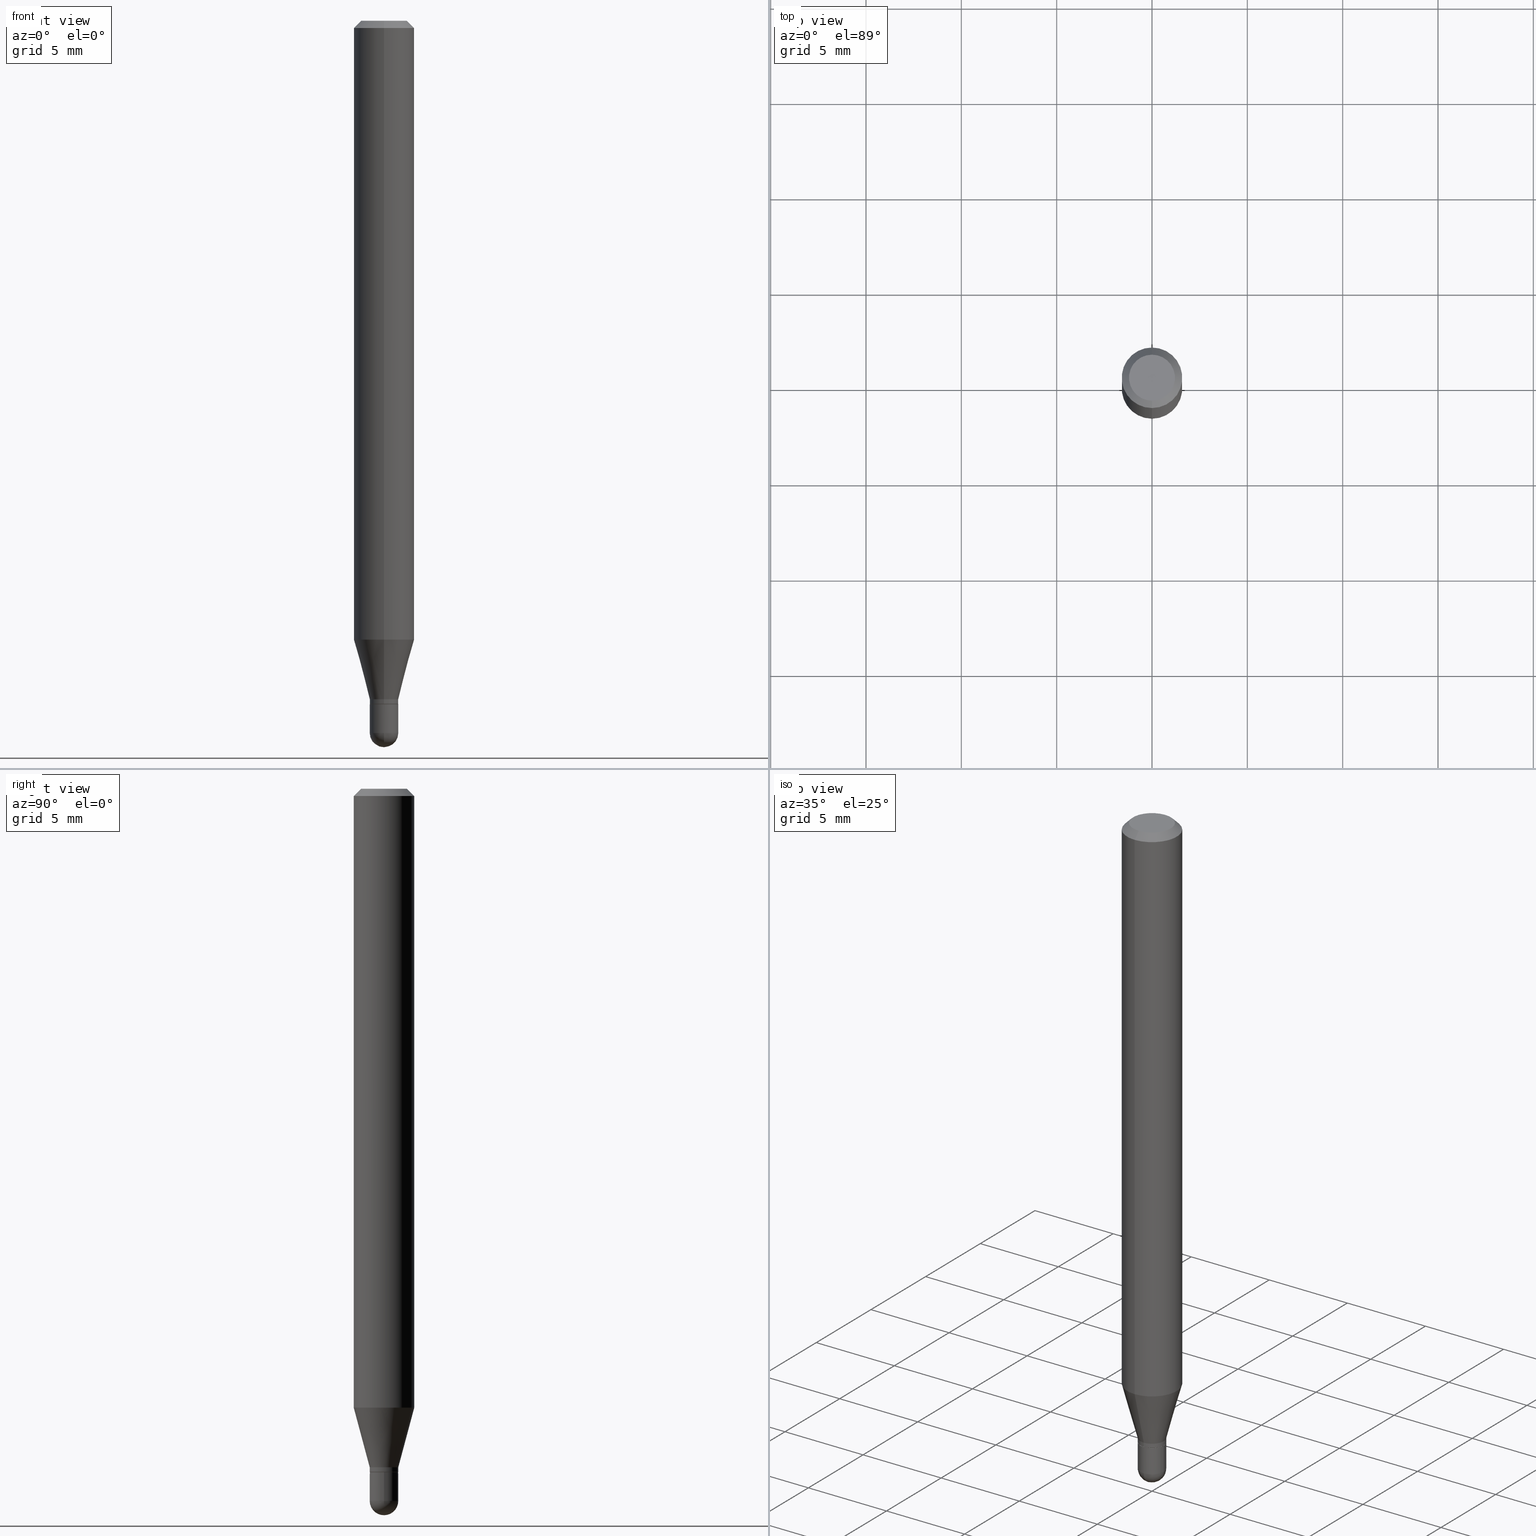
[diagram: canonical four-view strip — front | top / right | iso, engineering-drawing reading convention]
A machine part, canonical four-view strip (front | top / right | iso — engineering-drawing reading convention). The complete STEP part file that produces these views, byte-faithful:
ISO-10303-21;
HEADER;
FILE_DESCRIPTION (( 'STEP AP203' ),
    '1' );
FILE_NAME ('00794.STEP',
    '2024-03-07T18:23:36',
    ( '' ),
    ( '' ),
    'SwSTEP 2.0',
    'SolidWorks 2023',
    '' );
FILE_SCHEMA (( 'CONFIG_CONTROL_DESIGN' ));
ENDSEC;

DATA;
#1 = DIRECTION ( 'NONE',  ( -6.982962677686265133E-15, -1.000000000000000000, 0.000000000000000000 ) ) ;
#2 = DIRECTION ( 'NONE',  ( 2.445467841293650250E-29, -3.491482720622672358E-15, -1.000000000000000000 ) ) ;
#3 = APPROVAL_ROLE ( '' ) ;
#4 = EDGE_CURVE ( 'NONE', #334, #300, #247, .T. ) ;
#5 = VERTEX_POINT ( 'NONE', #364 ) ;
#6 = DATE_AND_TIME ( #328, #376 ) ;
#7 = CARTESIAN_POINT ( 'NONE',  ( 0.02949999999999999845, -5.132477568099422441E-15, -1.411000000000000032 ) ) ;
#8 = AXIS2_PLACEMENT_3D ( 'NONE', #56, #200, #409 ) ;
#9 = CONICAL_SURFACE ( 'NONE', #88, 0.06250000000000000000, 0.7853981633974483900 ) ;
#10 =( NAMED_UNIT ( * ) SI_UNIT ( $, .STERADIAN. ) SOLID_ANGLE_UNIT ( ) );
#11 = CC_DESIGN_PERSON_AND_ORGANIZATION_ASSIGNMENT ( #408, #401, ( #318 ) ) ;
#12 = DIRECTION ( 'NONE',  ( 0.000000000000000000, 0.000000000000000000, 1.000000000000000000 ) ) ;
#13 = CARTESIAN_POINT ( 'NONE',  ( -4.364351673553605587E-16, -0.06250000000000449640, -1.277842323350228515 ) ) ;
#14 = DIRECTION ( 'NONE',  ( -2.445468806185136597E-29, 3.491481338843145583E-15, 1.000000000000000000 ) ) ;
#15 = PERSON_AND_ORGANIZATION ( #178, #359 ) ;
#16 = CARTESIAN_POINT ( 'NONE',  ( -3.773273898774340269E-16, -0.04749999999999999362, 1.569851752722733387E-16 ) ) ;
#17 = ORIENTED_EDGE ( 'NONE', *, *, #93, .F. ) ;
#18 =( LENGTH_UNIT ( ) NAMED_UNIT ( * ) SI_UNIT ( $, .METRE. ) );
#19 = CARTESIAN_POINT ( 'NONE',  ( 4.440892098500935790E-16, 0.06249999999999551054, -1.277842323350228959 ) ) ;
#20 = AXIS2_PLACEMENT_3D ( 'NONE', #483, #127, #210 ) ;
#21 = CIRCLE ( 'NONE', #196, 0.04749999999999999362 ) ;
#22 = EDGE_LOOP ( 'NONE', ( #69, #310, #87, #156 ) ) ;
#23 = CARTESIAN_POINT ( 'NONE',  ( 3.426100445652404486E-29, -4.891567291592364272E-15, -1.401000000000000245 ) ) ;
#24 = EDGE_CURVE ( 'NONE', #342, #133, #290, .T. ) ;
#25 = VERTEX_POINT ( 'NONE', #7 ) ;
#26 = FACE_OUTER_BOUND ( 'NONE', #450, .T. ) ;
#27 = EDGE_LOOP ( 'NONE', ( #17, #270, #132, #456 ) ) ;
#28 = DIRECTION ( 'NONE',  ( -2.445468806185136597E-29, 3.491481338843145583E-15, 1.000000000000000000 ) ) ;
#29 = CIRCLE ( 'NONE', #393, 0.02950000000000000192 ) ;
#30 =( GEOMETRIC_REPRESENTATION_CONTEXT ( 3 ) GLOBAL_UNCERTAINTY_ASSIGNED_CONTEXT ( ( #262 ) ) GLOBAL_UNIT_ASSIGNED_CONTEXT ( ( #404, #212, #10 ) ) REPRESENTATION_CONTEXT ( 'NONE', 'WORKASPACE' ) );
#31 = DIRECTION ( 'NONE',  ( 2.445467841293650250E-29, -3.491482720622672358E-15, -1.000000000000000000 ) ) ;
#32 = EDGE_CURVE ( 'NONE', #361, #255, #283, .T. ) ;
#33 = CARTESIAN_POINT ( 'NONE',  ( 3.668201761940477862E-31, -5.237224080934011471E-17, -0.01500000000000000812 ) ) ;
#34 = ORIENTED_EDGE ( 'NONE', *, *, #24, .F. ) ;
#35 = LINE ( 'NONE', #234, #374 ) ;
#36 = ORIENTED_EDGE ( 'NONE', *, *, #73, .F. ) ;
#37 = CIRCLE ( 'NONE', #248, 0.02949999999999999845 ) ;
#38 = DIRECTION ( 'NONE',  ( 4.937700262164548042E-15, 0.7071067811865451302, -0.7071067811865499042 ) ) ;
#39 = EDGE_CURVE ( 'NONE', #255, #135, #29, .T. ) ;
#40 = CARTESIAN_POINT ( 'NONE',  ( -4.287811248607203282E-16, -0.06250000000000005551, -0.01499999999999979128 ) ) ;
#41 = DIRECTION ( 'NONE',  ( -6.982962677686265922E-15, -1.000000000000000000, 3.491482720622672358E-15 ) ) ;
#42 = LINE ( 'NONE', #40, #432 ) ;
#43 = PRODUCT_RELATED_PRODUCT_CATEGORY ( 'detail', '', ( #182 ) ) ;
#44 = DATE_AND_TIME ( #445, #490 ) ;
#45 = DIRECTION ( 'NONE',  ( -4.937700262164674260E-15, -0.7071067811865632269, 0.7071067811865319186 ) ) ;
#46 = DATE_AND_TIME ( #412, #302 ) ;
#47 = CARTESIAN_POINT ( 'NONE',  ( -2.059973989917119804E-16, -0.02950000000000509159, -1.401000000000000245 ) ) ;
#48 = ORIENTED_EDGE ( 'NONE', *, *, #32, .F. ) ;
#49 = EDGE_CURVE ( 'NONE', #5, #454, #121, .T. ) ;
#50 = APPROVAL_DATE_TIME ( #116, #151 ) ;
#51 = DIRECTION ( 'NONE',  ( 2.445467841293649970E-29, -3.491482720622672358E-15, -1.000000000000000000 ) ) ;
#52 = APPROVAL_STATUS ( 'not_yet_approved' ) ;
#53 = CARTESIAN_POINT ( 'NONE',  ( 3.450555124065340240E-29, -4.926482118798590822E-15, -1.411000000000000032 ) ) ;
#54 = ORIENTED_EDGE ( 'NONE', *, *, #460, .T. ) ;
#55 = CARTESIAN_POINT ( 'NONE',  ( 0.000000000000000000, 0.000000000000000000, 0.000000000000000000 ) ) ;
#56 = CARTESIAN_POINT ( 'NONE',  ( 3.593539138942164173E-29, -5.137836016826330348E-15, -1.470500000000000140 ) ) ;
#57 = ORIENTED_EDGE ( 'NONE', *, *, #73, .T. ) ;
#58 = DIRECTION ( 'NONE',  ( -6.982962677686265922E-15, -1.000000000000000000, 3.483106191921935554E-15 ) ) ;
#59 = CIRCLE ( 'NONE', #384, 0.06250000000000000000 ) ;
#60 = AXIS2_PLACEMENT_3D ( 'NONE', #197, #192, #360 ) ;
#61 = EDGE_LOOP ( 'NONE', ( #48, #257, #308, #469 ) ) ;
#62 = FACE_OUTER_BOUND ( 'NONE', #90, .T. ) ;
#63 = LINE ( 'NONE', #303, #386 ) ;
#64 = ORIENTED_EDGE ( 'NONE', *, *, #167, .T. ) ;
#65 = CC_DESIGN_PERSON_AND_ORGANIZATION_ASSIGNMENT ( #368, #162, ( #285 ) ) ;
#66 = SPHERICAL_SURFACE ( 'NONE', #140, 0.02950000000000002967 ) ;
#67 = AXIS2_PLACEMENT_3D ( 'NONE', #174, #339, #307 ) ;
#68 = AXIS2_PLACEMENT_3D ( 'NONE', #227, #76, #271 ) ;
#69 = ORIENTED_EDGE ( 'NONE', *, *, #281, .F. ) ;
#70 = DIRECTION ( 'NONE',  ( -6.982962677686265922E-15, -1.000000000000000000, 0.000000000000000000 ) ) ;
#71 = EDGE_LOOP ( 'NONE', ( #378, #383, #92, #371 ) ) ;
#72 = CARTESIAN_POINT ( 'NONE',  ( 0.000000000000000000, 0.000000000000000000, 0.000000000000000000 ) ) ;
#73 = EDGE_CURVE ( 'NONE', #133, #124, #59, .T. ) ;
#74 = AXIS2_PLACEMENT_3D ( 'NONE', #451, #28, #377 ) ;
#75 = CIRCLE ( 'NONE', #216, 0.02899999999999999800 ) ;
#76 = DIRECTION ( 'NONE',  ( -2.445468806185136597E-29, 3.491481338843145583E-15, 1.000000000000000000 ) ) ;
#77 = CARTESIAN_POINT ( 'NONE',  ( 3.450555124065340240E-29, -4.926482118798590822E-15, -1.411000000000000032 ) ) ;
#78 = CARTESIAN_POINT ( 'NONE',  ( -4.364351673553912750E-16, -0.06250000000000005551, -0.01499999999999979128 ) ) ;
#79 = EDGE_CURVE ( 'NONE', #107, #25, #230, .T. ) ;
#80 = AXIS2_PLACEMENT_3D ( 'NONE', #405, #51, #207 ) ;
#81 = AXIS2_PLACEMENT_3D ( 'NONE', #141, #218, #459 ) ;
#82 = PERSON_AND_ORGANIZATION ( #178, #359 ) ;
#83 = EDGE_LOOP ( 'NONE', ( #487, #426, #295, #294 ) ) ;
#84 = APPROVAL_STATUS ( 'not_yet_approved' ) ;
#85 = DIRECTION ( 'NONE',  ( -2.445467841293650250E-29, 3.491482720622672358E-15, 1.000000000000000000 ) ) ;
#86 = DIRECTION ( 'NONE',  ( 1.000000000000000000, 0.000000000000000000, 0.000000000000000000 ) ) ;
#87 = ORIENTED_EDGE ( 'NONE', *, *, #24, .T. ) ;
#88 = AXIS2_PLACEMENT_3D ( 'NONE', #385, #31, #299 ) ;
#89 = CC_DESIGN_APPROVAL ( #139, ( #318 ) ) ;
#90 = EDGE_LOOP ( 'NONE', ( #171, #306, #410, #419 ) ) ;
#91 = DIRECTION ( 'NONE',  ( -1.807323732225336056E-15, -0.2588190451025190186, 0.9659258262890687563 ) ) ;
#92 = ORIENTED_EDGE ( 'NONE', *, *, #49, .T. ) ;
#93 = EDGE_CURVE ( 'NONE', #361, #334, #188, .T. ) ;
#94 = DIRECTION ( 'NONE',  ( -2.445467841293650250E-29, 3.491482720622672358E-15, 1.000000000000000000 ) ) ;
#95 = ORIENTED_EDGE ( 'NONE', *, *, #261, .T. ) ;
#96 = DIRECTION ( 'NONE',  ( -2.445467841293650250E-29, 3.491482720622672358E-15, 1.000000000000000000 ) ) ;
#97 = ORIENTED_EDGE ( 'NONE', *, *, #281, .T. ) ;
#98 = DIRECTION ( 'NONE',  ( -2.445467841293650250E-29, 3.491482720622672358E-15, 1.000000000000000000 ) ) ;
#99 = VERTEX_POINT ( 'NONE', #362 ) ;
#100 = ADVANCED_FACE ( 'NONE', ( #320 ), #332, .T. ) ;
#101 = CARTESIAN_POINT ( 'NONE',  ( 4.440892098500625669E-16, 0.06250000000000000000, -2.182176700389170224E-16 ) ) ;
#102 = CYLINDRICAL_SURFACE ( 'NONE', #67, 0.02950000000000006437 ) ;
#103 = AXIS2_PLACEMENT_3D ( 'NONE', #479, #119, #286 ) ;
#104 = EDGE_LOOP ( 'NONE', ( #330, #414, #498, #228, #138 ) ) ;
#105 = AXIS2_PLACEMENT_3D ( 'NONE', #431, #106, #154 ) ;
#106 = DIRECTION ( 'NONE',  ( -2.445467841293650250E-29, 3.491482720622672358E-15, 1.000000000000000000 ) ) ;
#107 = VERTEX_POINT ( 'NONE', #372 ) ;
#108 = EDGE_LOOP ( 'NONE', ( #375, #349, #505, #350 ) ) ;
#109 = DIRECTION ( 'NONE',  ( -4.851104656540964275E-15, -0.7071067811865500152, -0.7071067811865450192 ) ) ;
#110 = ADVANCED_FACE ( 'NONE', ( #485 ), #158, .T. ) ;
#111 = DIRECTION ( 'NONE',  ( -2.445467841293650250E-29, 3.491482720622672358E-15, 1.000000000000000000 ) ) ;
#112 = VECTOR ( 'NONE', #420, 39.37007874015748143 ) ;
#113 = CARTESIAN_POINT ( 'NONE',  ( 0.000000000000000000, 0.000000000000000000, 0.000000000000000000 ) ) ;
#114 = ADVANCED_FACE ( 'NONE', ( #165 ), #152, .T. ) ;
#115 = DIRECTION ( 'NONE',  ( -6.982962677686265922E-15, -1.000000000000000000, 3.491482720622672358E-15 ) ) ;
#116 = DATE_AND_TIME ( #478, #237 ) ;
#117 = AXIS2_PLACEMENT_3D ( 'NONE', #72, #274, #398 ) ;
#118 = COORDINATED_UNIVERSAL_TIME_OFFSET ( 5, 0, .BEHIND. ) ;
#119 = DIRECTION ( 'NONE',  ( -1.000000000000000000, 6.982962677686266711E-15, -4.883557194083112340E-29 ) ) ;
#120 = APPLICATION_PROTOCOL_DEFINITION ( 'international standard', 'config_control_design', 1994, #265 ) ;
#121 = LINE ( 'NONE', #446, #195 ) ;
#122 = ADVANCED_FACE ( 'NONE', ( #245 ), #441, .T. ) ;
#123 = PERSON_AND_ORGANIZATION ( #178, #359 ) ;
#124 = VERTEX_POINT ( 'NONE', #19 ) ;
#125 = VERTEX_POINT ( 'NONE', #169 ) ;
#126 = APPROVAL_ROLE ( '' ) ;
#127 = DIRECTION ( 'NONE',  ( -2.445467841293650250E-29, 3.491482720622672358E-15, 1.000000000000000000 ) ) ;
#128 = LOCAL_TIME ( 13, 23, 36.00000000000000000, #242 ) ;
#129 = ADVANCED_FACE ( 'NONE', ( #292 ), #402, .F. ) ;
#130 = EDGE_LOOP ( 'NONE', ( #462, #388, #452, #221 ) ) ;
#131 = DIRECTION ( 'NONE',  ( -2.445467841293650250E-29, 3.491482720622672358E-15, 1.000000000000000000 ) ) ;
#132 = ORIENTED_EDGE ( 'NONE', *, *, #367, .F. ) ;
#133 = VERTEX_POINT ( 'NONE', #13 ) ;
#134 = DIRECTION ( 'NONE',  ( 1.839019923739606232E-15, 0.2588190451025257910, 0.9659258262890669799 ) ) ;
#135 = VERTEX_POINT ( 'NONE', #329 ) ;
#136 = VERTEX_POINT ( 'NONE', #16 ) ;
#137 = DIRECTION ( 'NONE',  ( -2.445467841293650250E-29, 3.491482720622672358E-15, 1.000000000000000000 ) ) ;
#138 = ORIENTED_EDGE ( 'NONE', *, *, #79, .F. ) ;
#139 = APPROVAL ( #363, 'UNSPECIFIED' ) ;
#140 = AXIS2_PLACEMENT_3D ( 'NONE', #415, #387, #418 ) ;
#141 = CARTESIAN_POINT ( 'NONE',  ( 2.166746611828072802E-46, -3.093542359225412079E-32, -8.860253957303587473E-18 ) ) ;
#142 = CARTESIAN_POINT ( 'NONE',  ( 0.000000000000000000, 0.000000000000000000, 0.000000000000000000 ) ) ;
#143 = DIRECTION ( 'NONE',  ( -6.982962677686266711E-15, -1.000000000000000000, 3.491482720622672753E-15 ) ) ;
#144 = EDGE_LOOP ( 'NONE', ( #468, #217 ) ) ;
#145 = ORIENTED_EDGE ( 'NONE', *, *, #428, .T. ) ;
#146 = CONICAL_SURFACE ( 'NONE', #439, 0.06250000000000000000, 0.7853981633974483900 ) ;
#147 = EDGE_CURVE ( 'NONE', #135, #334, #480, .T. ) ;
#148 = DIRECTION ( 'NONE',  ( -2.445467841293650250E-29, 3.491482720622672358E-15, 1.000000000000000000 ) ) ;
#149 = CARTESIAN_POINT ( 'NONE',  ( 3.450555124065340240E-29, -4.926482118798590822E-15, -1.411000000000000032 ) ) ;
#150 = CARTESIAN_POINT ( 'NONE',  ( 3.450555124065340240E-29, -4.926482118798590822E-15, -1.411000000000000032 ) ) ;
#151 = APPROVAL ( #52, 'UNSPECIFIED' ) ;
#152 = CONICAL_SURFACE ( 'NONE', #20, 0.02899999999999999800, 0.7853981633974739252 ) ;
#153 = DIRECTION ( 'NONE',  ( -2.445467841293650250E-29, 3.491482720622672358E-15, 1.000000000000000000 ) ) ;
#154 = DIRECTION ( 'NONE',  ( -6.982962677686265922E-15, -1.000000000000000000, 0.000000000000000000 ) ) ;
#155 = PERSON_AND_ORGANIZATION_ROLE ( 'design_owner' ) ;
#156 = ORIENTED_EDGE ( 'NONE', *, *, #428, .F. ) ;
#157 = CARTESIAN_POINT ( 'NONE',  ( 2.078337502098634593E-16, 0.02899999999999507139, -1.411000000000000032 ) ) ;
#158 = SPHERICAL_SURFACE ( 'NONE', #103, 0.02950000000000002967 ) ;
#159 = DIRECTION ( 'NONE',  ( 5.024295867788190974E-15, 0.7071067811865681119, 0.7071067811865270336 ) ) ;
#160 = EDGE_CURVE ( 'NONE', #346, #214, #365, .T. ) ;
#161 = CIRCLE ( 'NONE', #260, 0.06250000000000000000 ) ;
#162 = PERSON_AND_ORGANIZATION_ROLE ( 'creator' ) ;
#163 = CARTESIAN_POINT ( 'NONE',  ( 3.124922307996946489E-29, -4.461564391657653796E-15, -1.277842323350228737 ) ) ;
#164 = COORDINATED_UNIVERSAL_TIME_OFFSET ( 5, 0, .BEHIND. ) ;
#165 = FACE_OUTER_BOUND ( 'NONE', #108, .T. ) ;
#166 = DIRECTION ( 'NONE',  ( 1.000000000000000000, -6.982962677686250933E-15, 0.000000000000000000 ) ) ;
#167 = EDGE_CURVE ( 'NONE', #125, #136, #21, .T. ) ;
#168 = EDGE_LOOP ( 'NONE', ( #184, #145, #464, #340 ) ) ;
#169 = CARTESIAN_POINT ( 'NONE',  ( 3.840629472727447874E-16, 0.04749999999999999362, -1.747056831868805136E-16 ) ) ;
#170 = VECTOR ( 'NONE', #501, 39.37007874015748143 ) ;
#171 = ORIENTED_EDGE ( 'NONE', *, *, #261, .F. ) ;
#172 = FACE_OUTER_BOUND ( 'NONE', #296, .T. ) ;
#173 = ORIENTED_EDGE ( 'NONE', *, *, #373, .F. ) ;
#174 = CARTESIAN_POINT ( 'NONE',  ( 0.000000000000000000, 0.000000000000000000, 0.000000000000000000 ) ) ;
#175 = ORIENTED_EDGE ( 'NONE', *, *, #357, .T. ) ;
#176 = ADVANCED_FACE ( 'NONE', ( #461 ), #358, .T. ) ;
#177 = DIRECTION ( 'NONE',  ( -2.445467841293650250E-29, 3.491482720622672358E-15, 1.000000000000000000 ) ) ;
#178 = PERSON ( 'UNSPECIFIED', 'UNSPECIFIED', 'UNSPECIFIED', ('UNSPECIFIED'), ('UNSPECIFIED'), ('UNSPECIFIED') ) ;
#179 = VECTOR ( 'NONE', #502, 39.37007874015748143 ) ;
#180 = CARTESIAN_POINT ( 'NONE',  ( -2.059973989917452604E-16, -0.02950000000000006437, 1.029987402583690572E-16 ) ) ;
#181 = DESIGN_CONTEXT ( 'detailed design', #265, 'design' ) ;
#182 = PRODUCT ( '00794', '00794', '', ( #282 ) ) ;
#183 = CARTESIAN_POINT ( 'NONE',  ( -4.364351673553916201E-16, -0.06250000000000000000, 2.182176700389170224E-16 ) ) ;
#184 = ORIENTED_EDGE ( 'NONE', *, *, #185, .F. ) ;
#185 = EDGE_CURVE ( 'NONE', #124, #214, #455, .T. ) ;
#186 = ORIENTED_EDGE ( 'NONE', *, *, #4, .T. ) ;
#187 = CARTESIAN_POINT ( 'NONE',  ( 3.668201761940477862E-31, -5.237224080934011471E-17, -0.01500000000000000812 ) ) ;
#188 = CIRCLE ( 'NONE', #8, 0.02950000000000002967 ) ;
#189 = VECTOR ( 'NONE', #159, 39.37007874015748143 ) ;
#190 = DIMENSIONAL_EXPONENTS ( 1.000000000000000000, 0.000000000000000000, 0.000000000000000000, 0.000000000000000000, 0.000000000000000000, 0.000000000000000000, 0.000000000000000000 ) ;
#191 = CYLINDRICAL_SURFACE ( 'NONE', #117, 0.02950000000000000192 ) ;
#192 = DIRECTION ( 'NONE',  ( -2.445467841293650250E-29, 3.491482720622672358E-15, 1.000000000000000000 ) ) ;
#193 = CC_DESIGN_PERSON_AND_ORGANIZATION_ASSIGNMENT ( #482, #484, ( #335 ) ) ;
#194 = CARTESIAN_POINT ( 'NONE',  ( 0.02950000000000000192, -2.059973989917448660E-16, 1.438472148859801150E-30 ) ) ;
#195 = VECTOR ( 'NONE', #45, 39.37007874015748143 ) ;
#196 = AXIS2_PLACEMENT_3D ( 'NONE', #305, #177, #143 ) ;
#197 = CARTESIAN_POINT ( 'NONE',  ( 3.124922307996946489E-29, -4.461564391657653796E-15, -1.277842323350228737 ) ) ;
#198 = LINE ( 'NONE', #202, #189 ) ;
#199 = SHAPE_DEFINITION_REPRESENTATION ( #499, #326 ) ;
#200 = DIRECTION ( 'NONE',  ( 1.000000000000000000, -6.982962677686265922E-15, 4.883557194083112340E-29 ) ) ;
#201 = ADVANCED_FACE ( 'NONE', ( #26 ), #102, .T. ) ;
#202 = CARTESIAN_POINT ( 'NONE',  ( 2.060573933704635277E-16, 0.02899999999999507139, -1.411000000000000032 ) ) ;
#203 = PERSON_AND_ORGANIZATION_ROLE ( 'design_supplier' ) ;
#204 = CARTESIAN_POINT ( 'NONE',  ( 3.593539138942164173E-29, -5.137836016826330348E-15, -1.470500000000000140 ) ) ;
#205 = CIRCLE ( 'NONE', #489, 0.02899999999999999800 ) ;
#206 = PERSON_AND_ORGANIZATION ( #178, #359 ) ;
#207 = DIRECTION ( 'NONE',  ( 6.982962677686265922E-15, 1.000000000000000000, -3.491482720622672358E-15 ) ) ;
#208 = EDGE_CURVE ( 'NONE', #454, #342, #220, .T. ) ;
#209 = APPROVAL_ROLE ( '' ) ;
#210 = DIRECTION ( 'NONE',  ( -6.982962677686265133E-15, -1.000000000000000000, 0.000000000000000000 ) ) ;
#211 = ORIENTED_EDGE ( 'NONE', *, *, #160, .F. ) ;
#212 =( NAMED_UNIT ( * ) PLANE_ANGLE_UNIT ( ) SI_UNIT ( $, .RADIAN. ) );
#213 = DIRECTION ( 'NONE',  ( -2.445468806185136597E-29, 3.491481338843145583E-15, 1.000000000000000000 ) ) ;
#214 = VERTEX_POINT ( 'NONE', #379 ) ;
#215 = CARTESIAN_POINT ( 'NONE',  ( -0.02950000000000000192, -4.820741631889032374E-15, -1.470500000000000140 ) ) ;
#216 = AXIS2_PLACEMENT_3D ( 'NONE', #77, #148, #233 ) ;
#217 = ORIENTED_EDGE ( 'NONE', *, *, #79, .T. ) ;
#218 = DIRECTION ( 'NONE',  ( -2.445467841293650250E-29, 3.491482720622672358E-15, 1.000000000000000000 ) ) ;
#219 = ADVANCED_FACE ( 'NONE', ( #347 ), #341, .T. ) ;
#220 = LINE ( 'NONE', #180, #179 ) ;
#221 = ORIENTED_EDGE ( 'NONE', *, *, #266, .T. ) ;
#222 = DIRECTION ( 'NONE',  ( 2.438088387897960049E-29, -3.491481338843145188E-15, -1.000000000000000000 ) ) ;
#223 = CIRCLE ( 'NONE', #366, 0.02949999999999992212 ) ;
#224 = CARTESIAN_POINT ( 'NONE',  ( 3.668201761940477862E-31, -5.237224080934011471E-17, -0.01500000000000000812 ) ) ;
#225 = ADVANCED_FACE ( 'NONE', ( #172 ), #267, .T. ) ;
#226 = ORIENTED_EDGE ( 'NONE', *, *, #503, .F. ) ;
#227 = CARTESIAN_POINT ( 'NONE',  ( 3.596061879495243621E-29, -5.134223308768845522E-15, -1.470500000000000140 ) ) ;
#228 = ORIENTED_EDGE ( 'NONE', *, *, #373, .T. ) ;
#229 = FACE_OUTER_BOUND ( 'NONE', #291, .T. ) ;
#230 = CIRCLE ( 'NONE', #488, 0.02949999999999999845 ) ;
#231 = AXIS2_PLACEMENT_3D ( 'NONE', #263, #382, #424 ) ;
#232 = ADVANCED_FACE ( 'NONE', ( #258 ), #66, .T. ) ;
#233 = DIRECTION ( 'NONE',  ( -6.982962677686265133E-15, -1.000000000000000000, 0.000000000000000000 ) ) ;
#234 = CARTESIAN_POINT ( 'NONE',  ( -0.02950000000000000192, 2.096101070492295684E-16, -1.451085851625197342E-30 ) ) ;
#235 = CARTESIAN_POINT ( 'NONE',  ( 2.096101070492627499E-16, 0.02949999999999489836, -1.410500000000000087 ) ) ;
#236 = AXIS2_PLACEMENT_3D ( 'NONE', #392, #436, #396 ) ;
#237 = LOCAL_TIME ( 13, 23, 36.00000000000000000, #319 ) ;
#238 = DIRECTION ( 'NONE',  ( -2.445467841293650250E-29, 3.491482720622672358E-15, 1.000000000000000000 ) ) ;
#239 = DATE_TIME_ROLE ( 'creation_date' ) ;
#240 = DIRECTION ( 'NONE',  ( 1.000000000000000000, -6.982962677686250144E-15, 0.000000000000000000 ) ) ;
#241 = ADVANCED_FACE ( 'NONE', ( #62 ), #9, .T. ) ;
#242 = COORDINATED_UNIVERSAL_TIME_OFFSET ( 5, 0, .BEHIND. ) ;
#243 = CARTESIAN_POINT ( 'NONE',  ( 3.596061879495243621E-29, -5.134223308768845522E-15, -1.470500000000000140 ) ) ;
#244 = PERSON_AND_ORGANIZATION ( #178, #359 ) ;
#245 = FACE_OUTER_BOUND ( 'NONE', #83, .T. ) ;
#246 = CC_DESIGN_DATE_AND_TIME_ASSIGNMENT ( #46, #239, ( #318 ) ) ;
#247 = CIRCLE ( 'NONE', #457, 0.02950000000000000192 ) ;
#248 = AXIS2_PLACEMENT_3D ( 'NONE', #322, #14, #253 ) ;
#249 = DATE_AND_TIME ( #443, #128 ) ;
#250 = CC_DESIGN_APPROVAL ( #151, ( #285 ) ) ;
#251 = DIRECTION ( 'NONE',  ( -2.445468806185136597E-29, 3.491481338843145583E-15, 1.000000000000000000 ) ) ;
#252 = ORIENTED_EDGE ( 'NONE', *, *, #313, .F. ) ;
#253 = DIRECTION ( 'NONE',  ( 1.000000000000000000, -6.982962677686250933E-15, 0.000000000000000000 ) ) ;
#254 = DIRECTION ( 'NONE',  ( -7.105427357601000281E-15, -1.000000000000000000, 0.000000000000000000 ) ) ;
#255 = VERTEX_POINT ( 'NONE', #343 ) ;
#256 = DIRECTION ( 'NONE',  ( -6.982962677686265922E-15, -1.000000000000000000, 3.491482720622672358E-15 ) ) ;
#257 = ORIENTED_EDGE ( 'NONE', *, *, #93, .T. ) ;
#258 = FACE_OUTER_BOUND ( 'NONE', #27, .T. ) ;
#259 = EDGE_LOOP ( 'NONE', ( #57, #421, #211, #338 ) ) ;
#260 = AXIS2_PLACEMENT_3D ( 'NONE', #33, #96, #58 ) ;
#261 = EDGE_CURVE ( 'NONE', #136, #125, #333, .T. ) ;
#262 = UNCERTAINTY_MEASURE_WITH_UNIT (LENGTH_MEASURE( 1.000000000000000082E-05 ), #404, 'distance_accuracy_value', 'NONE');
#263 = CARTESIAN_POINT ( 'NONE',  ( 0.000000000000000000, 0.000000000000000000, 0.000000000000000000 ) ) ;
#264 = LINE ( 'NONE', #183, #112 ) ;
#265 = APPLICATION_CONTEXT ( 'configuration controlled 3d designs of mechanical parts and assemblies' ) ;
#266 = EDGE_CURVE ( 'NONE', #214, #346, #161, .T. ) ;
#267 = CYLINDRICAL_SURFACE ( 'NONE', #231, 0.02950000000000000192 ) ;
#268 = VECTOR ( 'NONE', #91, 39.37007874015748143 ) ;
#269 = CONICAL_SURFACE ( 'NONE', #105, 0.02950000000000019967, 0.2617993877991511287 ) ;
#270 = ORIENTED_EDGE ( 'NONE', *, *, #32, .T. ) ;
#271 = DIRECTION ( 'NONE',  ( 1.000000000000000000, -6.982962677686250144E-15, 0.000000000000000000 ) ) ;
#272 = ORIENTED_EDGE ( 'NONE', *, *, #381, .F. ) ;
#273 = FACE_OUTER_BOUND ( 'NONE', #104, .T. ) ;
#274 = DIRECTION ( 'NONE',  ( -2.445468806185136597E-29, 3.491481338843145583E-15, 1.000000000000000000 ) ) ;
#275 = AXIS2_PLACEMENT_3D ( 'NONE', #53, #331, #288 ) ;
#276 = EDGE_CURVE ( 'NONE', #133, #346, #264, .T. ) ;
#277 = AXIS2_PLACEMENT_3D ( 'NONE', #150, #511, #41 ) ;
#278 = AXIS2_PLACEMENT_3D ( 'NONE', #55, #12, #86 ) ;
#279 = DIRECTION ( 'NONE',  ( -2.445467841293650250E-29, 3.491482720622672358E-15, 1.000000000000000000 ) ) ;
#280 = CARTESIAN_POINT ( 'NONE',  ( -2.059973989917104766E-16, -0.02950000000000494588, -1.410500000000000087 ) ) ;
#281 = EDGE_CURVE ( 'NONE', #99, #124, #63, .T. ) ;
#282 = MECHANICAL_CONTEXT ( 'NONE', #293, 'mechanical' ) ;
#283 = CIRCLE ( 'NONE', #315, 0.02950000000000002967 ) ;
#284 = VECTOR ( 'NONE', #512, 39.37007874015748143 ) ;
#285 = PRODUCT_DEFINITION_FORMATION_WITH_SPECIFIED_SOURCE ( 'ANY', '', #182, .NOT_KNOWN. ) ;
#286 = DIRECTION ( 'NONE',  ( 6.982962677686266711E-15, 1.000000000000000000, 0.000000000000000000 ) ) ;
#287 = DATE_TIME_ROLE ( 'classification_date' ) ;
#288 = DIRECTION ( 'NONE',  ( -6.982962677686265133E-15, -1.000000000000000000, 0.000000000000000000 ) ) ;
#289 = CC_DESIGN_PERSON_AND_ORGANIZATION_ASSIGNMENT ( #206, #203, ( #285 ) ) ;
#290 = LINE ( 'NONE', #47, #268 ) ;
#291 = EDGE_LOOP ( 'NONE', ( #252, #272 ) ) ;
#292 = FACE_OUTER_BOUND ( 'NONE', #506, .T. ) ;
#293 = APPLICATION_CONTEXT ( 'configuration controlled 3d designs of mechanical parts and assemblies' ) ;
#294 = ORIENTED_EDGE ( 'NONE', *, *, #345, .F. ) ;
#295 = ORIENTED_EDGE ( 'NONE', *, *, #208, .T. ) ;
#296 = EDGE_LOOP ( 'NONE', ( #186, #175, #226, #173, #429 ) ) ;
#297 = ADVANCED_FACE ( 'NONE', ( #504 ), #298, .F. ) ;
#298 = PLANE ( 'NONE',  #352 ) ;
#299 = DIRECTION ( 'NONE',  ( 6.982962677686265922E-15, 1.000000000000000000, -3.483106191921935554E-15 ) ) ;
#300 = VERTEX_POINT ( 'NONE', #215 ) ;
#301 = AXIS2_PLACEMENT_3D ( 'NONE', #470, #111, #70 ) ;
#302 = LOCAL_TIME ( 13, 23, 36.00000000000000000, #164 ) ;
#303 = CARTESIAN_POINT ( 'NONE',  ( 2.096101070492652151E-16, 0.02949999999999530775, -1.401000000000000245 ) ) ;
#304 = ADVANCED_FACE ( 'NONE', ( #494 ), #146, .T. ) ;
#305 = CARTESIAN_POINT ( 'NONE',  ( 2.166746611828072802E-46, -3.093542359225412079E-32, -8.860253957303587473E-18 ) ) ;
#306 = ORIENTED_EDGE ( 'NONE', *, *, #403, .T. ) ;
#307 = DIRECTION ( 'NONE',  ( -6.982962677686265133E-15, -1.000000000000000000, 3.491482720622672358E-15 ) ) ;
#308 = ORIENTED_EDGE ( 'NONE', *, *, #147, .F. ) ;
#309 = AXIS2_PLACEMENT_3D ( 'NONE', #370, #131, #336 ) ;
#310 = ORIENTED_EDGE ( 'NONE', *, *, #345, .T. ) ;
#311 = LINE ( 'NONE', #312, #284 ) ;
#312 = CARTESIAN_POINT ( 'NONE',  ( 2.096101070492299629E-16, 0.02950000000000006437, -1.029987402583690572E-16 ) ) ;
#313 = EDGE_CURVE ( 'NONE', #5, #491, #205, .T. ) ;
#314 = CARTESIAN_POINT ( 'NONE',  ( 3.449332390144693761E-29, -4.924736377438280204E-15, -1.410500000000000087 ) ) ;
#315 = AXIS2_PLACEMENT_3D ( 'NONE', #204, #444, #254 ) ;
#316 = VECTOR ( 'NONE', #427, 39.37007874015748143 ) ;
#317 = DIRECTION ( 'NONE',  ( -6.982962677686265922E-15, -1.000000000000000000, 0.000000000000000000 ) ) ;
#318 = PRODUCT_DEFINITION ( 'UNKNOWN', '', #285, #181 ) ;
#319 = COORDINATED_UNIVERSAL_TIME_OFFSET ( 5, 0, .BEHIND. ) ;
#320 = FACE_OUTER_BOUND ( 'NONE', #71, .T. ) ;
#321 = CLOSED_SHELL ( 'NONE', ( #201, #114, #241, #219, #323, #176, #448, #304, #129, #434, #100, #122 ) ) ;
#322 = CARTESIAN_POINT ( 'NONE',  ( 3.450556485527227711E-29, -4.926480169107677920E-15, -1.411000000000000032 ) ) ;
#323 = ADVANCED_FACE ( 'NONE', ( #389 ), #269, .T. ) ;
#324 = COORDINATED_UNIVERSAL_TIME_OFFSET ( 5, 0, .BEHIND. ) ;
#325 = CARTESIAN_POINT ( 'NONE',  ( 3.450556485527227711E-29, -4.926480169107677920E-15, -1.411000000000000032 ) ) ;
#326 = ADVANCED_BREP_SHAPE_REPRESENTATION ( '00794', ( #475, #472, #278 ), #30 ) ;
#327 = LENGTH_MEASURE_WITH_UNIT ( LENGTH_MEASURE( 0.02539999999999999897 ), #18 );
#328 = CALENDAR_DATE ( 2024, 7, 3 ) ;
#329 = CARTESIAN_POINT ( 'NONE',  ( 0.02950000000000000192, -5.236349137930006242E-15, -1.470500000000000140 ) ) ;
#330 = ORIENTED_EDGE ( 'NONE', *, *, #357, .F. ) ;
#331 = DIRECTION ( 'NONE',  ( -2.445467841293650250E-29, 3.491482720622672358E-15, 1.000000000000000000 ) ) ;
#332 = CONICAL_SURFACE ( 'NONE', #275, 0.02899999999999999800, 0.7853981633974739252 ) ;
#333 = CIRCLE ( 'NONE', #81, 0.04749999999999999362 ) ;
#334 = VERTEX_POINT ( 'NONE', #430 ) ;
#335 = SECURITY_CLASSIFICATION ( '', '', #399 ) ;
#336 = DIRECTION ( 'NONE',  ( -6.982962677686265133E-15, -1.000000000000000000, 3.491482720622672358E-15 ) ) ;
#337 = EDGE_CURVE ( 'NONE', #125, #214, #471, .T. ) ;
#338 = ORIENTED_EDGE ( 'NONE', *, *, #276, .F. ) ;
#339 = DIRECTION ( 'NONE',  ( -2.445467841293650250E-29, 3.491482720622672358E-15, 1.000000000000000000 ) ) ;
#340 = ORIENTED_EDGE ( 'NONE', *, *, #266, .F. ) ;
#341 = CYLINDRICAL_SURFACE ( 'NONE', #394, 0.06250000000000000000 ) ;
#342 = VERTEX_POINT ( 'NONE', #355 ) ;
#343 = CARTESIAN_POINT ( 'NONE',  ( -2.096101070491936753E-16, -0.02950000000000515057, -1.470500000000000140 ) ) ;
#344 = CIRCLE ( 'NONE', #406, 0.02950000000000019967 ) ;
#345 = EDGE_CURVE ( 'NONE', #99, #342, #508, .T. ) ;
#346 = VERTEX_POINT ( 'NONE', #78 ) ;
#347 = FACE_OUTER_BOUND ( 'NONE', #259, .T. ) ;
#348 = DIRECTION ( 'NONE',  ( -1.000000000000000000, 6.982962677686265922E-15, -4.876176775795935793E-29 ) ) ;
#349 = ORIENTED_EDGE ( 'NONE', *, *, #473, .T. ) ;
#350 = ORIENTED_EDGE ( 'NONE', *, *, #49, .F. ) ;
#351 = CARTESIAN_POINT ( 'NONE',  ( 4.364351673553919652E-16, 0.06249999999999995143, -0.01500000000000022669 ) ) ;
#352 = AXIS2_PLACEMENT_3D ( 'NONE', #422, #222, #348 ) ;
#353 = EDGE_CURVE ( 'NONE', #454, #391, #416, .T. ) ;
#354 = PLANE ( 'NONE',  #277 ) ;
#355 = CARTESIAN_POINT ( 'NONE',  ( -2.059973989917119804E-16, -0.02950000000000509159, -1.401000000000000245 ) ) ;
#356 = LINE ( 'NONE', #194, #316 ) ;
#357 = EDGE_CURVE ( 'NONE', #300, #107, #35, .T. ) ;
#358 = CONICAL_SURFACE ( 'NONE', #423, 0.02950000000000019967, 0.2617993877991511287 ) ;
#359 = ORGANIZATION ( 'UNSPECIFIED', 'UNSPECIFIED', '' ) ;
#360 = DIRECTION ( 'NONE',  ( -6.982962677686265922E-15, -1.000000000000000000, 4.370956789862821150E-15 ) ) ;
#361 = VERTEX_POINT ( 'NONE', #509 ) ;
#362 = CARTESIAN_POINT ( 'NONE',  ( 3.268496584496795573E-16, 0.02949999999999530775, -1.401000000000000245 ) ) ;
#363 = APPROVAL_STATUS ( 'not_yet_approved' ) ;
#364 = CARTESIAN_POINT ( 'NONE',  ( -2.025059176528671736E-16, -0.02900000000000492462, -1.411000000000000032 ) ) ;
#365 = CIRCLE ( 'NONE', #500, 0.06250000000000000000 ) ;
#366 = AXIS2_PLACEMENT_3D ( 'NONE', #314, #153, #317 ) ;
#367 = EDGE_CURVE ( 'NONE', #300, #255, #447, .T. ) ;
#368 = PERSON_AND_ORGANIZATION ( #178, #359 ) ;
#369 = CARTESIAN_POINT ( 'NONE',  ( 3.596061879495243621E-29, -5.134223308768845522E-15, -1.470500000000000140 ) ) ;
#370 = CARTESIAN_POINT ( 'NONE',  ( 0.000000000000000000, 0.000000000000000000, 0.000000000000000000 ) ) ;
#371 = ORIENTED_EDGE ( 'NONE', *, *, #442, .F. ) ;
#372 = CARTESIAN_POINT ( 'NONE',  ( -0.02949999999999999845, -4.820741631889032374E-15, -1.411000000000000032 ) ) ;
#373 = EDGE_CURVE ( 'NONE', #135, #25, #356, .T. ) ;
#374 = VECTOR ( 'NONE', #467, 39.37007874015748143 ) ;
#375 = ORIENTED_EDGE ( 'NONE', *, *, #313, .T. ) ;
#376 = LOCAL_TIME ( 13, 23, 36.00000000000000000, #118 ) ;
#377 = DIRECTION ( 'NONE',  ( 1.000000000000000000, -6.982962677686250144E-15, 0.000000000000000000 ) ) ;
#378 = ORIENTED_EDGE ( 'NONE', *, *, #473, .F. ) ;
#379 = CARTESIAN_POINT ( 'NONE',  ( 4.440892098500940720E-16, 0.06249999999999995143, -0.01500000000000022669 ) ) ;
#380 = EDGE_LOOP ( 'NONE', ( #54, #97, #36, #34 ) ) ;
#381 = EDGE_CURVE ( 'NONE', #491, #5, #75, .T. ) ;
#382 = DIRECTION ( 'NONE',  ( -2.445468806185136597E-29, 3.491481338843145583E-15, 1.000000000000000000 ) ) ;
#383 = ORIENTED_EDGE ( 'NONE', *, *, #381, .T. ) ;
#384 = AXIS2_PLACEMENT_3D ( 'NONE', #163, #85, #413 ) ;
#385 = CARTESIAN_POINT ( 'NONE',  ( 3.668201761940477862E-31, -5.237224080934011471E-17, -0.01500000000000000812 ) ) ;
#386 = VECTOR ( 'NONE', #134, 39.37007874015748143 ) ;
#387 = DIRECTION ( 'NONE',  ( -1.000000000000000000, 6.982962677686266711E-15, -4.883557194083112340E-29 ) ) ;
#388 = ORIENTED_EDGE ( 'NONE', *, *, #167, .F. ) ;
#389 = FACE_OUTER_BOUND ( 'NONE', #380, .T. ) ;
#390 = EDGE_CURVE ( 'NONE', #391, #99, #311, .T. ) ;
#391 = VERTEX_POINT ( 'NONE', #235 ) ;
#392 = CARTESIAN_POINT ( 'NONE',  ( 3.426100445652404486E-29, -4.891567291592364272E-15, -1.401000000000000245 ) ) ;
#393 = AXIS2_PLACEMENT_3D ( 'NONE', #369, #251, #400 ) ;
#394 = AXIS2_PLACEMENT_3D ( 'NONE', #142, #94, #256 ) ;
#395 = DIRECTION ( 'NONE',  ( 6.982962677686265922E-15, 1.000000000000000000, -3.483106191921935554E-15 ) ) ;
#396 = DIRECTION ( 'NONE',  ( -6.982962677686265922E-15, -1.000000000000000000, 0.000000000000000000 ) ) ;
#397 = APPROVAL ( #84, 'UNSPECIFIED' ) ;
#398 = DIRECTION ( 'NONE',  ( 1.000000000000000000, -6.982962677686265922E-15, 4.876176775795935793E-29 ) ) ;
#399 = SECURITY_CLASSIFICATION_LEVEL ( 'unclassified' ) ;
#400 = DIRECTION ( 'NONE',  ( 1.000000000000000000, -6.982962677686250144E-15, 0.000000000000000000 ) ) ;
#401 = PERSON_AND_ORGANIZATION_ROLE ( 'creator' ) ;
#402 = PLANE ( 'NONE',  #80 ) ;
#403 = EDGE_CURVE ( 'NONE', #136, #346, #42, .T. ) ;
#404 =( CONVERSION_BASED_UNIT ( 'INCH', #327 ) LENGTH_UNIT ( ) NAMED_UNIT ( #190 ) );
#405 = CARTESIAN_POINT ( 'NONE',  ( 3.316907271900976096E-16, 0.04749999999999999362, -1.702755562082287199E-16 ) ) ;
#406 = AXIS2_PLACEMENT_3D ( 'NONE', #437, #238, #407 ) ;
#407 = DIRECTION ( 'NONE',  ( -6.982962677686265922E-15, -1.000000000000000000, 0.000000000000000000 ) ) ;
#408 = PERSON_AND_ORGANIZATION ( #178, #359 ) ;
#409 = DIRECTION ( 'NONE',  ( 6.982962677686265922E-15, 1.000000000000000000, 0.000000000000000000 ) ) ;
#410 = ORIENTED_EDGE ( 'NONE', *, *, #160, .T. ) ;
#411 = ADVANCED_FACE ( 'NONE', ( #273 ), #191, .T. ) ;
#412 = CALENDAR_DATE ( 2024, 7, 3 ) ;
#413 = DIRECTION ( 'NONE',  ( -6.982962677686265922E-15, -1.000000000000000000, 4.370956789862821150E-15 ) ) ;
#414 = ORIENTED_EDGE ( 'NONE', *, *, #367, .T. ) ;
#415 = CARTESIAN_POINT ( 'NONE',  ( 3.593539138942164173E-29, -5.137836016826330348E-15, -1.470500000000000140 ) ) ;
#416 = CIRCLE ( 'NONE', #301, 0.02949999999999992212 ) ;
#417 = ORIENTED_EDGE ( 'NONE', *, *, #390, .T. ) ;
#418 = DIRECTION ( 'NONE',  ( 6.982962677686266711E-15, 1.000000000000000000, 0.000000000000000000 ) ) ;
#419 = ORIENTED_EDGE ( 'NONE', *, *, #337, .F. ) ;
#420 = DIRECTION ( 'NONE',  ( -2.445467841293649970E-29, 3.491482720622672358E-15, 1.000000000000000000 ) ) ;
#421 = ORIENTED_EDGE ( 'NONE', *, *, #185, .T. ) ;
#422 = CARTESIAN_POINT ( 'NONE',  ( 2.059973989917793540E-16, 0.02949999999999507183, -1.411000000000000032 ) ) ;
#423 = AXIS2_PLACEMENT_3D ( 'NONE', #23, #98, #463 ) ;
#424 = DIRECTION ( 'NONE',  ( 1.000000000000000000, -6.982962677686265922E-15, 4.876176775795935793E-29 ) ) ;
#425 = APPROVAL_PERSON_ORGANIZATION ( #123, #397, #126 ) ;
#426 = ORIENTED_EDGE ( 'NONE', *, *, #442, .T. ) ;
#427 = DIRECTION ( 'NONE',  ( -2.445468806185136877E-29, 3.491481338843145188E-15, 1.000000000000000000 ) ) ;
#428 = EDGE_CURVE ( 'NONE', #124, #133, #458, .T. ) ;
#429 = ORIENTED_EDGE ( 'NONE', *, *, #147, .T. ) ;
#430 = CARTESIAN_POINT ( 'NONE',  ( 2.059973989917809071E-16, 0.02949999999999488101, -1.470500000000000140 ) ) ;
#431 = CARTESIAN_POINT ( 'NONE',  ( 3.426100445652404486E-29, -4.891567291592364272E-15, -1.401000000000000245 ) ) ;
#432 = VECTOR ( 'NONE', #109, 39.37007874015748143 ) ;
#433 = APPROVAL_PERSON_ORGANIZATION ( #244, #151, #3 ) ;
#434 = ADVANCED_FACE ( 'NONE', ( #229 ), #354, .F. ) ;
#435 = DIRECTION ( 'NONE',  ( -2.445467841293650250E-29, 3.491482720622672358E-15, 1.000000000000000000 ) ) ;
#436 = DIRECTION ( 'NONE',  ( -2.445467841293650250E-29, 3.491482720622672358E-15, 1.000000000000000000 ) ) ;
#437 = CARTESIAN_POINT ( 'NONE',  ( 3.426100445652404486E-29, -4.891567291592364272E-15, -1.401000000000000245 ) ) ;
#438 = APPROVAL_DATE_TIME ( #249, #139 ) ;
#439 = AXIS2_PLACEMENT_3D ( 'NONE', #187, #2, #395 ) ;
#440 = APPROVAL_DATE_TIME ( #44, #397 ) ;
#441 = CYLINDRICAL_SURFACE ( 'NONE', #309, 0.02950000000000006437 ) ;
#442 = EDGE_CURVE ( 'NONE', #391, #454, #223, .T. ) ;
#443 = CALENDAR_DATE ( 2024, 7, 3 ) ;
#444 = DIRECTION ( 'NONE',  ( -1.000000000000000000, 7.105427357601001070E-15, -4.926315508542082329E-29 ) ) ;
#445 = CALENDAR_DATE ( 2024, 7, 3 ) ;
#446 = CARTESIAN_POINT ( 'NONE',  ( -2.025059176528671736E-16, -0.02900000000000492462, -1.411000000000000032 ) ) ;
#447 = CIRCLE ( 'NONE', #68, 0.02950000000000000192 ) ;
#448 = ADVANCED_FACE ( 'NONE', ( #477 ), #474, .T. ) ;
#449 = CC_DESIGN_APPROVAL ( #397, ( #335 ) ) ;
#450 = EDGE_LOOP ( 'NONE', ( #495, #417, #493, #492 ) ) ;
#451 = CARTESIAN_POINT ( 'NONE',  ( 3.596061879495243621E-29, -5.134223308768845522E-15, -1.470500000000000140 ) ) ;
#452 = ORIENTED_EDGE ( 'NONE', *, *, #337, .T. ) ;
#453 = DIRECTION ( 'NONE',  ( -2.445468806185136597E-29, 3.491481338843145583E-15, 1.000000000000000000 ) ) ;
#454 = VERTEX_POINT ( 'NONE', #280 ) ;
#455 = LINE ( 'NONE', #101, #170 ) ;
#456 = ORIENTED_EDGE ( 'NONE', *, *, #4, .F. ) ;
#457 = AXIS2_PLACEMENT_3D ( 'NONE', #243, #453, #240 ) ;
#458 = CIRCLE ( 'NONE', #60, 0.06250000000000000000 ) ;
#459 = DIRECTION ( 'NONE',  ( -6.982962677686266711E-15, -1.000000000000000000, 3.491482720622672753E-15 ) ) ;
#460 = EDGE_CURVE ( 'NONE', #342, #99, #344, .T. ) ;
#461 = FACE_OUTER_BOUND ( 'NONE', #22, .T. ) ;
#462 = ORIENTED_EDGE ( 'NONE', *, *, #403, .F. ) ;
#463 = DIRECTION ( 'NONE',  ( -6.982962677686265922E-15, -1.000000000000000000, 0.000000000000000000 ) ) ;
#464 = ORIENTED_EDGE ( 'NONE', *, *, #276, .T. ) ;
#465 = APPLICATION_PROTOCOL_DEFINITION ( 'international standard', 'config_control_design', 1994, #293 ) ;
#466 = VECTOR ( 'NONE', #38, 39.37007874015748143 ) ;
#467 = DIRECTION ( 'NONE',  ( -2.445468806185136877E-29, 3.491481338843145188E-15, 1.000000000000000000 ) ) ;
#468 = ORIENTED_EDGE ( 'NONE', *, *, #503, .T. ) ;
#469 = ORIENTED_EDGE ( 'NONE', *, *, #39, .F. ) ;
#470 = CARTESIAN_POINT ( 'NONE',  ( 3.449332390144693761E-29, -4.924736377438280204E-15, -1.410500000000000087 ) ) ;
#471 = LINE ( 'NONE', #351, #466 ) ;
#472 = MANIFOLD_SOLID_BREP ( 'Body-Move/Copy2[2]', #321 ) ;
#473 = EDGE_CURVE ( 'NONE', #491, #391, #198, .T. ) ;
#474 = CYLINDRICAL_SURFACE ( 'NONE', #481, 0.06250000000000000000 ) ;
#475 = MANIFOLD_SOLID_BREP ( 'Body-Move/Copy2[1]', #507 ) ;
#476 = CC_DESIGN_SECURITY_CLASSIFICATION ( #335, ( #285 ) ) ;
#477 = FACE_OUTER_BOUND ( 'NONE', #168, .T. ) ;
#478 = CALENDAR_DATE ( 2024, 7, 3 ) ;
#479 = CARTESIAN_POINT ( 'NONE',  ( 3.593539138942164173E-29, -5.137836016826330348E-15, -1.470500000000000140 ) ) ;
#480 = CIRCLE ( 'NONE', #74, 0.02950000000000000192 ) ;
#481 = AXIS2_PLACEMENT_3D ( 'NONE', #113, #279, #115 ) ;
#482 = PERSON_AND_ORGANIZATION ( #178, #359 ) ;
#483 = CARTESIAN_POINT ( 'NONE',  ( 3.450555124065340240E-29, -4.926482118798590822E-15, -1.411000000000000032 ) ) ;
#484 = PERSON_AND_ORGANIZATION_ROLE ( 'classification_officer' ) ;
#485 = FACE_OUTER_BOUND ( 'NONE', #61, .T. ) ;
#486 = CC_DESIGN_DATE_AND_TIME_ASSIGNMENT ( #6, #287, ( #335 ) ) ;
#487 = ORIENTED_EDGE ( 'NONE', *, *, #390, .F. ) ;
#488 = AXIS2_PLACEMENT_3D ( 'NONE', #325, #213, #166 ) ;
#489 = AXIS2_PLACEMENT_3D ( 'NONE', #149, #435, #1 ) ;
#490 = LOCAL_TIME ( 13, 23, 36.00000000000000000, #324 ) ;
#491 = VERTEX_POINT ( 'NONE', #157 ) ;
#492 = ORIENTED_EDGE ( 'NONE', *, *, #208, .F. ) ;
#493 = ORIENTED_EDGE ( 'NONE', *, *, #460, .F. ) ;
#494 = FACE_OUTER_BOUND ( 'NONE', #130, .T. ) ;
#495 = ORIENTED_EDGE ( 'NONE', *, *, #353, .T. ) ;
#496 = CC_DESIGN_PERSON_AND_ORGANIZATION_ASSIGNMENT ( #15, #155, ( #182 ) ) ;
#497 = DIRECTION ( 'NONE',  ( -6.982962677686265922E-15, -1.000000000000000000, 3.483106191921935554E-15 ) ) ;
#498 = ORIENTED_EDGE ( 'NONE', *, *, #39, .T. ) ;
#499 = PRODUCT_DEFINITION_SHAPE ( 'NONE', 'NONE',  #318 ) ;
#500 = AXIS2_PLACEMENT_3D ( 'NONE', #224, #137, #497 ) ;
#501 = DIRECTION ( 'NONE',  ( -2.445467841293649970E-29, 3.491482720622672358E-15, 1.000000000000000000 ) ) ;
#502 = DIRECTION ( 'NONE',  ( -2.445467841293649970E-29, 3.491482720622672358E-15, 1.000000000000000000 ) ) ;
#503 = EDGE_CURVE ( 'NONE', #25, #107, #37, .T. ) ;
#504 = FACE_OUTER_BOUND ( 'NONE', #144, .T. ) ;
#505 = ORIENTED_EDGE ( 'NONE', *, *, #353, .F. ) ;
#506 = EDGE_LOOP ( 'NONE', ( #64, #95 ) ) ;
#507 = CLOSED_SHELL ( 'NONE', ( #225, #232, #297, #110, #411 ) ) ;
#508 = CIRCLE ( 'NONE', #236, 0.02950000000000019967 ) ;
#509 = CARTESIAN_POINT ( 'NONE',  ( 3.666941839001165731E-29, -5.239028362293460590E-15, -1.500000000000000222 ) ) ;
#510 = APPROVAL_PERSON_ORGANIZATION ( #82, #139, #209 ) ;
#511 = DIRECTION ( 'NONE',  ( -2.445467841293649970E-29, 3.491482720622672358E-15, 1.000000000000000000 ) ) ;
#512 = DIRECTION ( 'NONE',  ( -2.445467841293649970E-29, 3.491482720622672358E-15, 1.000000000000000000 ) ) ;
ENDSEC;
END-ISO-10303-21;
